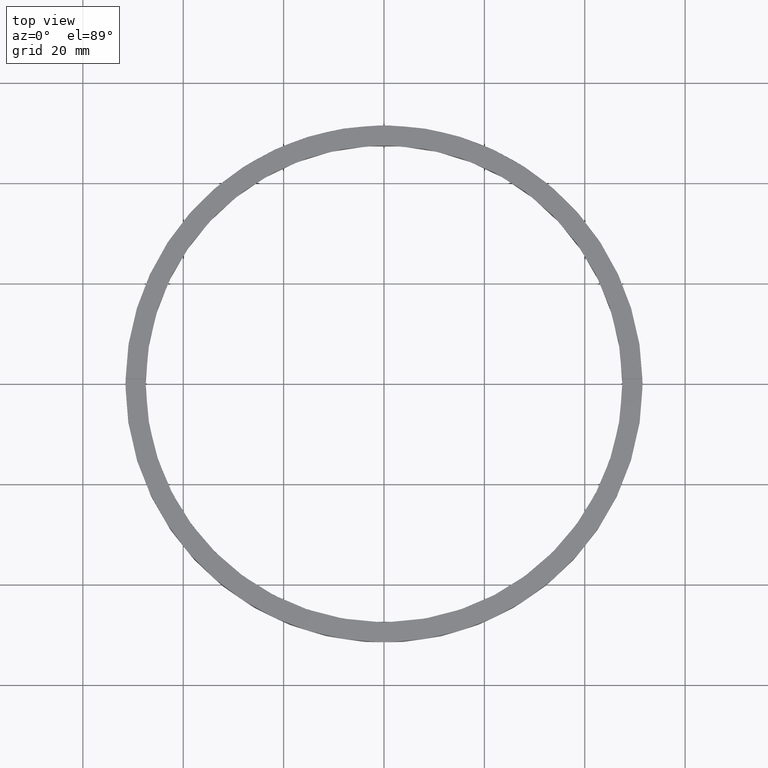
[diagram: clean part render]
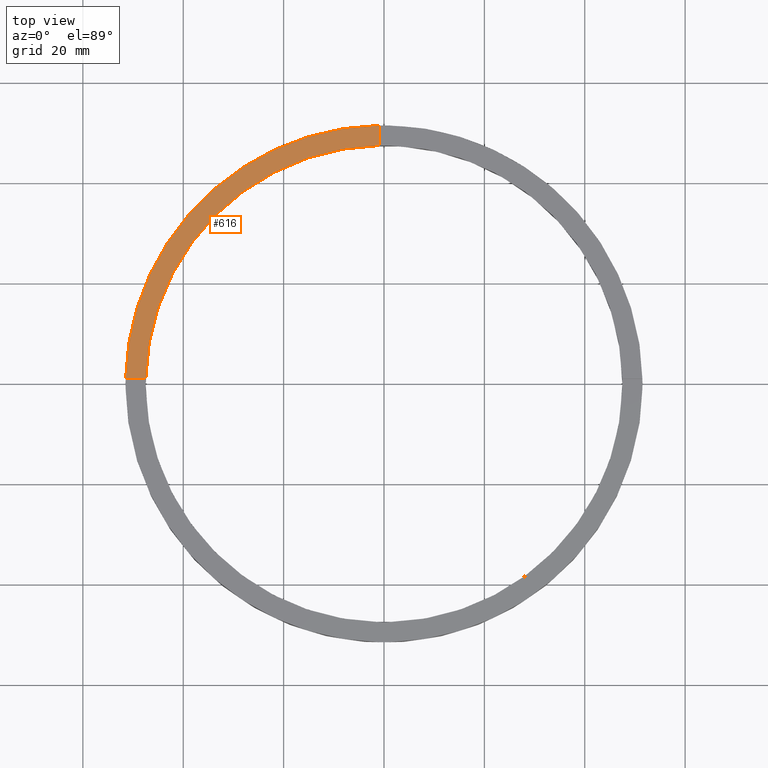
[diagram: same view with one face highlighted and labeled with its STEP entity id]
A machine part, top view. The second image highlights one B-rep face of the part: STEP entity #616.
In plain terms, the highlighted planar face has unit normal (0, 0, 1).
Its self-contained STEP definition (entity closure, byte-faithful):
#6 = CARTESIAN_POINT ( 'NONE',  ( 0.000000000000000000, 0.000000000000000000, 5.000000000000000000 ) ) ;
#33 = AXIS2_PLACEMENT_3D ( 'NONE', #6, #621, #477 ) ;
#57 = ORIENTED_EDGE ( 'NONE', *, *, #591, .F. ) ;
#70 = CARTESIAN_POINT ( 'NONE',  ( -41.50000000000018474, 0.9999999999999701350, 5.000000000000000000 ) ) ;
#126 = ORIENTED_EDGE ( 'NONE', *, *, #444, .F. ) ;
#201 = EDGE_CURVE ( 'NONE', #385, #434, #230, .T. ) ;
#224 = CARTESIAN_POINT ( 'NONE',  ( -47.48947251760120736, 0.9999999999999688027, 5.000000000000000000 ) ) ;
#230 = CIRCLE ( 'NONE', #288, 47.50000000000000711 ) ;
#243 = LINE ( 'NONE', #70, #515 ) ;
#264 = DIRECTION ( 'NONE',  ( 1.000000000000000000, 0.000000000000000000, 0.000000000000000000 ) ) ;
#268 = FACE_OUTER_BOUND ( 'NONE', #446, .T. ) ;
#288 = AXIS2_PLACEMENT_3D ( 'NONE', #634, #350, #264 ) ;
#342 = CARTESIAN_POINT ( 'NONE',  ( -1.000000000000026867, 51.49029034682169481, 5.000000000000000000 ) ) ;
#350 = DIRECTION ( 'NONE',  ( 0.000000000000000000, 0.000000000000000000, 1.000000000000000000 ) ) ;
#352 = EDGE_CURVE ( 'NONE', #713, #690, #484, .T. ) ;
#357 = AXIS2_PLACEMENT_3D ( 'NONE', #547, #697, #476 ) ;
#385 = VERTEX_POINT ( 'NONE', #661 ) ;
#429 = CARTESIAN_POINT ( 'NONE',  ( -1.000000000000026867, 41.49999999999999289, 5.000000000000000000 ) ) ;
#433 = CARTESIAN_POINT ( 'NONE',  ( -51.49029034682169481, 0.9999999999999681366, 5.000000000000000000 ) ) ;
#434 = VERTEX_POINT ( 'NONE', #224 ) ;
#444 = EDGE_CURVE ( 'NONE', #713, #385, #707, .T. ) ;
#446 = EDGE_LOOP ( 'NONE', ( #126, #646, #57, #647 ) ) ;
#476 = DIRECTION ( 'NONE',  ( 1.000000000000000000, 0.000000000000000000, -0.000000000000000000 ) ) ;
#477 = DIRECTION ( 'NONE',  ( 1.000000000000000000, 0.000000000000000000, 0.000000000000000000 ) ) ;
#484 = CIRCLE ( 'NONE', #33, 51.50000000000000000 ) ;
#487 = VECTOR ( 'NONE', #519, 1000.000000000000000 ) ;
#515 = VECTOR ( 'NONE', #685, 1000.000000000000000 ) ;
#519 = DIRECTION ( 'NONE',  ( -0.000000000000000000, -1.000000000000000000, -0.000000000000000000 ) ) ;
#547 = CARTESIAN_POINT ( 'NONE',  ( 0.000000000000000000, 0.000000000000000000, 5.000000000000000000 ) ) ;
#591 = EDGE_CURVE ( 'NONE', #434, #690, #243, .T. ) ;
#604 = PLANE ( 'NONE',  #357 ) ;
#616 = ADVANCED_FACE ( 'NONE', ( #268 ), #604, .T. ) ;
#621 = DIRECTION ( 'NONE',  ( 0.000000000000000000, 0.000000000000000000, 1.000000000000000000 ) ) ;
#634 = CARTESIAN_POINT ( 'NONE',  ( 0.000000000000000000, 0.000000000000000000, 5.000000000000000000 ) ) ;
#646 = ORIENTED_EDGE ( 'NONE', *, *, #352, .T. ) ;
#647 = ORIENTED_EDGE ( 'NONE', *, *, #201, .F. ) ;
#661 = CARTESIAN_POINT ( 'NONE',  ( -1.000000000000026867, 47.48947251760120736, 5.000000000000000000 ) ) ;
#685 = DIRECTION ( 'NONE',  ( -1.000000000000000000, -1.951563910473907735E-16, 0.000000000000000000 ) ) ;
#690 = VERTEX_POINT ( 'NONE', #433 ) ;
#697 = DIRECTION ( 'NONE',  ( 0.000000000000000000, 0.000000000000000000, 1.000000000000000000 ) ) ;
#707 = LINE ( 'NONE', #429, #487 ) ;
#713 = VERTEX_POINT ( 'NONE', #342 ) ;